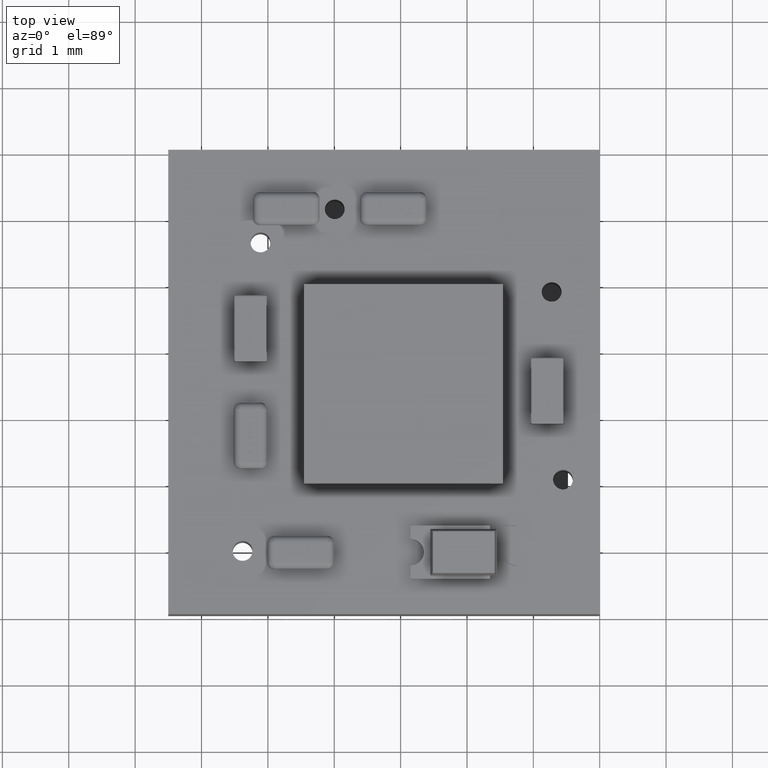
[diagram: clean part render]
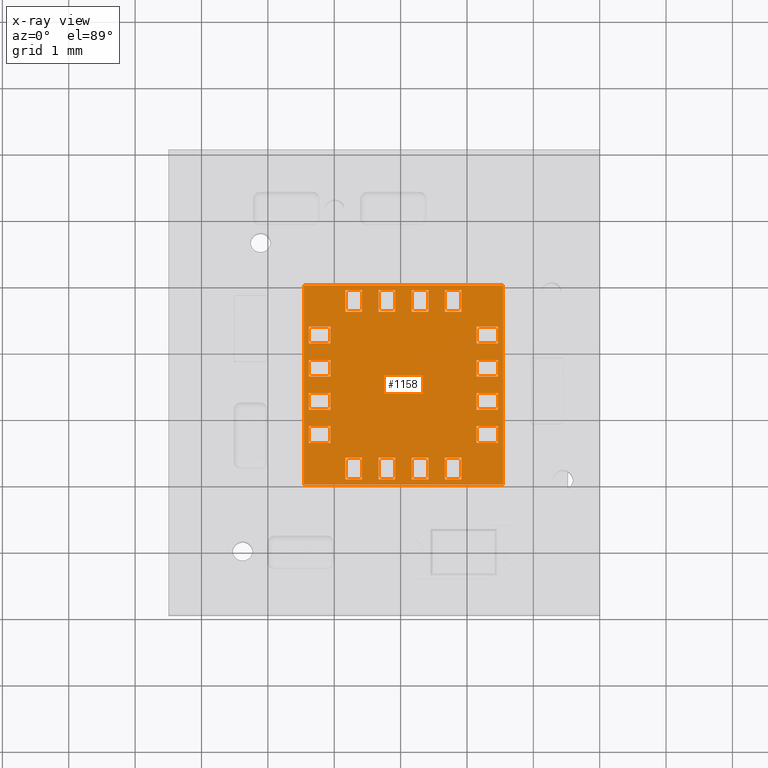
[diagram: x-ray — body ghosted, one internal face saturated and labeled with its STEP entity id]
A machine part, top view, then the same camera in x-ray: the body is ghosted and one INTERNAL B-rep face — a face not visible from any outside direction — is saturated and labeled: STEP entity #1158.
In plain terms, the highlighted planar face has unit normal (0, 0, -1).
Its self-contained STEP definition (entity closure, byte-faithful):
#1016 = EDGE_CURVE('',#1017,#1019,#1021,.T.);
#1017 = VERTEX_POINT('',#1018);
#1018 = CARTESIAN_POINT('',(1.5,0.E+000,1.5));
#1019 = VERTEX_POINT('',#1020);
#1020 = CARTESIAN_POINT('',(1.5,0.E+000,-1.5));
#1021 = LINE('',#1022,#1023);
#1022 = CARTESIAN_POINT('',(1.5,0.E+000,1.5));
#1023 = VECTOR('',#1024,1.);
#1024 = DIRECTION('',(0.E+000,0.E+000,-1.));
#1056 = EDGE_CURVE('',#1019,#1057,#1059,.T.);
#1057 = VERTEX_POINT('',#1058);
#1058 = CARTESIAN_POINT('',(-1.5,0.E+000,-1.5));
#1059 = LINE('',#1060,#1061);
#1060 = CARTESIAN_POINT('',(-1.5,0.E+000,-1.5));
#1061 = VECTOR('',#1062,1.);
#1062 = DIRECTION('',(-1.,-0.E+000,-0.E+000));
#1087 = EDGE_CURVE('',#1057,#1088,#1090,.T.);
#1088 = VERTEX_POINT('',#1089);
#1089 = CARTESIAN_POINT('',(-1.5,0.E+000,1.5));
#1090 = LINE('',#1091,#1092);
#1091 = CARTESIAN_POINT('',(-1.5,0.E+000,1.5));
#1092 = VECTOR('',#1093,1.);
#1093 = DIRECTION('',(-0.E+000,-0.E+000,1.));
#1118 = EDGE_CURVE('',#1088,#1017,#1119,.T.);
#1119 = LINE('',#1120,#1121);
#1120 = CARTESIAN_POINT('',(-1.5,0.E+000,1.5));
#1121 = VECTOR('',#1122,1.);
#1122 = DIRECTION('',(1.,0.E+000,0.E+000));
#1158 = ADVANCED_FACE('',(#1159,#1193,#1227,#1261,#1295,#1329,#1363,
    #1397,#1431,#1465,#1499,#1533,#1567,#1601,#1635,#1669,#1703),#1709,
  .T.);
#1159 = FACE_BOUND('',#1160,.T.);
#1160 = EDGE_LOOP('',(#1161,#1171,#1179,#1187));
#1161 = ORIENTED_EDGE('',*,*,#1162,.F.);
#1162 = EDGE_CURVE('',#1163,#1165,#1167,.T.);
#1163 = VERTEX_POINT('',#1164);
#1164 = CARTESIAN_POINT('',(-0.375,0.E+000,1.425));
#1165 = VERTEX_POINT('',#1166);
#1166 = CARTESIAN_POINT('',(-0.375,-0.E+000,1.1));
#1167 = LINE('',#1168,#1169);
#1168 = CARTESIAN_POINT('',(-0.375,0.E+000,1.425));
#1169 = VECTOR('',#1170,1.);
#1170 = DIRECTION('',(0.E+000,0.E+000,-1.));
#1171 = ORIENTED_EDGE('',*,*,#1172,.F.);
#1172 = EDGE_CURVE('',#1173,#1163,#1175,.T.);
#1173 = VERTEX_POINT('',#1174);
#1174 = CARTESIAN_POINT('',(-0.125,0.E+000,1.425));
#1175 = LINE('',#1176,#1177);
#1176 = CARTESIAN_POINT('',(-0.375,0.E+000,1.425));
#1177 = VECTOR('',#1178,1.);
#1178 = DIRECTION('',(-1.,-0.E+000,-0.E+000));
#1179 = ORIENTED_EDGE('',*,*,#1180,.F.);
#1180 = EDGE_CURVE('',#1181,#1173,#1183,.T.);
#1181 = VERTEX_POINT('',#1182);
#1182 = CARTESIAN_POINT('',(-0.125,0.E+000,1.1));
#1183 = LINE('',#1184,#1185);
#1184 = CARTESIAN_POINT('',(-0.125,0.E+000,1.425));
#1185 = VECTOR('',#1186,1.);
#1186 = DIRECTION('',(-0.E+000,-0.E+000,1.));
#1187 = ORIENTED_EDGE('',*,*,#1188,.F.);
#1188 = EDGE_CURVE('',#1165,#1181,#1189,.T.);
#1189 = LINE('',#1190,#1191);
#1190 = CARTESIAN_POINT('',(-0.375,0.E+000,1.1));
#1191 = VECTOR('',#1192,1.);
#1192 = DIRECTION('',(1.,0.E+000,0.E+000));
#1193 = FACE_BOUND('',#1194,.T.);
#1194 = EDGE_LOOP('',(#1195,#1205,#1213,#1221));
#1195 = ORIENTED_EDGE('',*,*,#1196,.F.);
#1196 = EDGE_CURVE('',#1197,#1199,#1201,.T.);
#1197 = VERTEX_POINT('',#1198);
#1198 = CARTESIAN_POINT('',(0.125,-0.E+000,1.425));
#1199 = VERTEX_POINT('',#1200);
#1200 = CARTESIAN_POINT('',(0.125,0.E+000,1.1));
#1201 = LINE('',#1202,#1203);
#1202 = CARTESIAN_POINT('',(0.125,-0.E+000,1.425));
#1203 = VECTOR('',#1204,1.);
#1204 = DIRECTION('',(0.E+000,0.E+000,-1.));
#1205 = ORIENTED_EDGE('',*,*,#1206,.F.);
#1206 = EDGE_CURVE('',#1207,#1197,#1209,.T.);
#1207 = VERTEX_POINT('',#1208);
#1208 = CARTESIAN_POINT('',(0.375,-0.E+000,1.425));
#1209 = LINE('',#1210,#1211);
#1210 = CARTESIAN_POINT('',(0.125,-0.E+000,1.425));
#1211 = VECTOR('',#1212,1.);
#1212 = DIRECTION('',(-1.,-0.E+000,-0.E+000));
#1213 = ORIENTED_EDGE('',*,*,#1214,.F.);
#1214 = EDGE_CURVE('',#1215,#1207,#1217,.T.);
#1215 = VERTEX_POINT('',#1216);
#1216 = CARTESIAN_POINT('',(0.375,-0.E+000,1.1));
#1217 = LINE('',#1218,#1219);
#1218 = CARTESIAN_POINT('',(0.375,-0.E+000,1.425));
#1219 = VECTOR('',#1220,1.);
#1220 = DIRECTION('',(-0.E+000,-0.E+000,1.));
#1221 = ORIENTED_EDGE('',*,*,#1222,.F.);
#1222 = EDGE_CURVE('',#1199,#1215,#1223,.T.);
#1223 = LINE('',#1224,#1225);
#1224 = CARTESIAN_POINT('',(0.125,-0.E+000,1.1));
#1225 = VECTOR('',#1226,1.);
#1226 = DIRECTION('',(1.,0.E+000,0.E+000));
#1227 = FACE_BOUND('',#1228,.T.);
#1228 = EDGE_LOOP('',(#1229,#1239,#1247,#1255));
#1229 = ORIENTED_EDGE('',*,*,#1230,.F.);
#1230 = EDGE_CURVE('',#1231,#1233,#1235,.T.);
#1231 = VERTEX_POINT('',#1232);
#1232 = CARTESIAN_POINT('',(0.625,-0.E+000,1.425));
#1233 = VERTEX_POINT('',#1234);
#1234 = CARTESIAN_POINT('',(0.625,0.E+000,1.1));
#1235 = LINE('',#1236,#1237);
#1236 = CARTESIAN_POINT('',(0.625,-0.E+000,1.425));
#1237 = VECTOR('',#1238,1.);
#1238 = DIRECTION('',(0.E+000,0.E+000,-1.));
#1239 = ORIENTED_EDGE('',*,*,#1240,.F.);
#1240 = EDGE_CURVE('',#1241,#1231,#1243,.T.);
#1241 = VERTEX_POINT('',#1242);
#1242 = CARTESIAN_POINT('',(0.875,-0.E+000,1.425));
#1243 = LINE('',#1244,#1245);
#1244 = CARTESIAN_POINT('',(0.625,-0.E+000,1.425));
#1245 = VECTOR('',#1246,1.);
#1246 = DIRECTION('',(-1.,-0.E+000,-0.E+000));
#1247 = ORIENTED_EDGE('',*,*,#1248,.F.);
#1248 = EDGE_CURVE('',#1249,#1241,#1251,.T.);
#1249 = VERTEX_POINT('',#1250);
#1250 = CARTESIAN_POINT('',(0.875,-0.E+000,1.1));
#1251 = LINE('',#1252,#1253);
#1252 = CARTESIAN_POINT('',(0.875,-0.E+000,1.425));
#1253 = VECTOR('',#1254,1.);
#1254 = DIRECTION('',(-0.E+000,-0.E+000,1.));
#1255 = ORIENTED_EDGE('',*,*,#1256,.F.);
#1256 = EDGE_CURVE('',#1233,#1249,#1257,.T.);
#1257 = LINE('',#1258,#1259);
#1258 = CARTESIAN_POINT('',(0.625,-0.E+000,1.1));
#1259 = VECTOR('',#1260,1.);
#1260 = DIRECTION('',(1.,0.E+000,0.E+000));
#1261 = FACE_BOUND('',#1262,.T.);
#1262 = EDGE_LOOP('',(#1263,#1273,#1281,#1289));
#1263 = ORIENTED_EDGE('',*,*,#1264,.F.);
#1264 = EDGE_CURVE('',#1265,#1267,#1269,.T.);
#1265 = VERTEX_POINT('',#1266);
#1266 = CARTESIAN_POINT('',(1.425,-0.E+000,0.875));
#1267 = VERTEX_POINT('',#1268);
#1268 = CARTESIAN_POINT('',(1.1,0.E+000,0.875));
#1269 = LINE('',#1270,#1271);
#1270 = CARTESIAN_POINT('',(1.425,-0.E+000,0.875));
#1271 = VECTOR('',#1272,1.);
#1272 = DIRECTION('',(-1.,0.E+000,0.E+000));
#1273 = ORIENTED_EDGE('',*,*,#1274,.F.);
#1274 = EDGE_CURVE('',#1275,#1265,#1277,.T.);
#1275 = VERTEX_POINT('',#1276);
#1276 = CARTESIAN_POINT('',(1.425,-0.E+000,0.625));
#1277 = LINE('',#1278,#1279);
#1278 = CARTESIAN_POINT('',(1.425,-0.E+000,0.875));
#1279 = VECTOR('',#1280,1.);
#1280 = DIRECTION('',(-0.E+000,-0.E+000,1.));
#1281 = ORIENTED_EDGE('',*,*,#1282,.F.);
#1282 = EDGE_CURVE('',#1283,#1275,#1285,.T.);
#1283 = VERTEX_POINT('',#1284);
#1284 = CARTESIAN_POINT('',(1.1,-0.E+000,0.625));
#1285 = LINE('',#1286,#1287);
#1286 = CARTESIAN_POINT('',(1.425,-0.E+000,0.625));
#1287 = VECTOR('',#1288,1.);
#1288 = DIRECTION('',(1.,-0.E+000,-0.E+000));
#1289 = ORIENTED_EDGE('',*,*,#1290,.F.);
#1290 = EDGE_CURVE('',#1267,#1283,#1291,.T.);
#1291 = LINE('',#1292,#1293);
#1292 = CARTESIAN_POINT('',(1.1,-0.E+000,0.875));
#1293 = VECTOR('',#1294,1.);
#1294 = DIRECTION('',(0.E+000,0.E+000,-1.));
#1295 = FACE_BOUND('',#1296,.T.);
#1296 = EDGE_LOOP('',(#1297,#1307,#1315,#1323));
#1297 = ORIENTED_EDGE('',*,*,#1298,.F.);
#1298 = EDGE_CURVE('',#1299,#1301,#1303,.T.);
#1299 = VERTEX_POINT('',#1300);
#1300 = CARTESIAN_POINT('',(1.425,-0.E+000,0.375));
#1301 = VERTEX_POINT('',#1302);
#1302 = CARTESIAN_POINT('',(1.1,0.E+000,0.375));
#1303 = LINE('',#1304,#1305);
#1304 = CARTESIAN_POINT('',(1.425,-0.E+000,0.375));
#1305 = VECTOR('',#1306,1.);
#1306 = DIRECTION('',(-1.,0.E+000,-1.668003342285E-016));
#1307 = ORIENTED_EDGE('',*,*,#1308,.F.);
#1308 = EDGE_CURVE('',#1309,#1299,#1311,.T.);
#1309 = VERTEX_POINT('',#1310);
#1310 = CARTESIAN_POINT('',(1.425,-0.E+000,0.125));
#1311 = LINE('',#1312,#1313);
#1312 = CARTESIAN_POINT('',(1.425,-0.E+000,0.375));
#1313 = VECTOR('',#1314,1.);
#1314 = DIRECTION('',(-0.E+000,-0.E+000,1.));
#1315 = ORIENTED_EDGE('',*,*,#1316,.F.);
#1316 = EDGE_CURVE('',#1317,#1309,#1319,.T.);
#1317 = VERTEX_POINT('',#1318);
#1318 = CARTESIAN_POINT('',(1.1,-0.E+000,0.125));
#1319 = LINE('',#1320,#1321);
#1320 = CARTESIAN_POINT('',(1.425,-0.E+000,0.125));
#1321 = VECTOR('',#1322,1.);
#1322 = DIRECTION('',(1.,-0.E+000,8.340016711427E-017));
#1323 = ORIENTED_EDGE('',*,*,#1324,.F.);
#1324 = EDGE_CURVE('',#1301,#1317,#1325,.T.);
#1325 = LINE('',#1326,#1327);
#1326 = CARTESIAN_POINT('',(1.1,-0.E+000,0.375));
#1327 = VECTOR('',#1328,1.);
#1328 = DIRECTION('',(0.E+000,0.E+000,-1.));
#1329 = FACE_BOUND('',#1330,.T.);
#1330 = EDGE_LOOP('',(#1331,#1341,#1349,#1357));
#1331 = ORIENTED_EDGE('',*,*,#1332,.F.);
#1332 = EDGE_CURVE('',#1333,#1335,#1337,.T.);
#1333 = VERTEX_POINT('',#1334);
#1334 = CARTESIAN_POINT('',(1.425,0.E+000,-0.125));
#1335 = VERTEX_POINT('',#1336);
#1336 = CARTESIAN_POINT('',(1.1,0.E+000,-0.125));
#1337 = LINE('',#1338,#1339);
#1338 = CARTESIAN_POINT('',(1.425,0.E+000,-0.125));
#1339 = VECTOR('',#1340,1.);
#1340 = DIRECTION('',(-1.,0.E+000,-8.340016711427E-017));
#1341 = ORIENTED_EDGE('',*,*,#1342,.F.);
#1342 = EDGE_CURVE('',#1343,#1333,#1345,.T.);
#1343 = VERTEX_POINT('',#1344);
#1344 = CARTESIAN_POINT('',(1.425,0.E+000,-0.375));
#1345 = LINE('',#1346,#1347);
#1346 = CARTESIAN_POINT('',(1.425,0.E+000,-0.125));
#1347 = VECTOR('',#1348,1.);
#1348 = DIRECTION('',(-0.E+000,-0.E+000,1.));
#1349 = ORIENTED_EDGE('',*,*,#1350,.F.);
#1350 = EDGE_CURVE('',#1351,#1343,#1353,.T.);
#1351 = VERTEX_POINT('',#1352);
#1352 = CARTESIAN_POINT('',(1.1,0.E+000,-0.375));
#1353 = LINE('',#1354,#1355);
#1354 = CARTESIAN_POINT('',(1.425,0.E+000,-0.375));
#1355 = VECTOR('',#1356,1.);
#1356 = DIRECTION('',(1.,-0.E+000,1.668003342285E-016));
#1357 = ORIENTED_EDGE('',*,*,#1358,.F.);
#1358 = EDGE_CURVE('',#1335,#1351,#1359,.T.);
#1359 = LINE('',#1360,#1361);
#1360 = CARTESIAN_POINT('',(1.1,0.E+000,-0.125));
#1361 = VECTOR('',#1362,1.);
#1362 = DIRECTION('',(0.E+000,0.E+000,-1.));
#1363 = FACE_BOUND('',#1364,.T.);
#1364 = EDGE_LOOP('',(#1365,#1375,#1383,#1391));
#1365 = ORIENTED_EDGE('',*,*,#1366,.F.);
#1366 = EDGE_CURVE('',#1367,#1369,#1371,.T.);
#1367 = VERTEX_POINT('',#1368);
#1368 = CARTESIAN_POINT('',(1.425,0.E+000,-0.625));
#1369 = VERTEX_POINT('',#1370);
#1370 = CARTESIAN_POINT('',(1.1,0.E+000,-0.625));
#1371 = LINE('',#1372,#1373);
#1372 = CARTESIAN_POINT('',(1.425,0.E+000,-0.625));
#1373 = VECTOR('',#1374,1.);
#1374 = DIRECTION('',(-1.,0.E+000,0.E+000));
#1375 = ORIENTED_EDGE('',*,*,#1376,.F.);
#1376 = EDGE_CURVE('',#1377,#1367,#1379,.T.);
#1377 = VERTEX_POINT('',#1378);
#1378 = CARTESIAN_POINT('',(1.425,0.E+000,-0.875));
#1379 = LINE('',#1380,#1381);
#1380 = CARTESIAN_POINT('',(1.425,0.E+000,-0.625));
#1381 = VECTOR('',#1382,1.);
#1382 = DIRECTION('',(-0.E+000,-0.E+000,1.));
#1383 = ORIENTED_EDGE('',*,*,#1384,.F.);
#1384 = EDGE_CURVE('',#1385,#1377,#1387,.T.);
#1385 = VERTEX_POINT('',#1386);
#1386 = CARTESIAN_POINT('',(1.1,0.E+000,-0.875));
#1387 = LINE('',#1388,#1389);
#1388 = CARTESIAN_POINT('',(1.425,0.E+000,-0.875));
#1389 = VECTOR('',#1390,1.);
#1390 = DIRECTION('',(1.,-0.E+000,-0.E+000));
#1391 = ORIENTED_EDGE('',*,*,#1392,.F.);
#1392 = EDGE_CURVE('',#1369,#1385,#1393,.T.);
#1393 = LINE('',#1394,#1395);
#1394 = CARTESIAN_POINT('',(1.1,0.E+000,-0.625));
#1395 = VECTOR('',#1396,1.);
#1396 = DIRECTION('',(0.E+000,0.E+000,-1.));
#1397 = FACE_BOUND('',#1398,.T.);
#1398 = EDGE_LOOP('',(#1399,#1409,#1417,#1425));
#1399 = ORIENTED_EDGE('',*,*,#1400,.F.);
#1400 = EDGE_CURVE('',#1401,#1403,#1405,.T.);
#1401 = VERTEX_POINT('',#1402);
#1402 = CARTESIAN_POINT('',(0.875,0.E+000,-1.425));
#1403 = VERTEX_POINT('',#1404);
#1404 = CARTESIAN_POINT('',(0.875,-0.E+000,-1.1));
#1405 = LINE('',#1406,#1407);
#1406 = CARTESIAN_POINT('',(0.875,0.E+000,-1.425));
#1407 = VECTOR('',#1408,1.);
#1408 = DIRECTION('',(-3.336006684571E-016,0.E+000,1.));
#1409 = ORIENTED_EDGE('',*,*,#1410,.F.);
#1410 = EDGE_CURVE('',#1411,#1401,#1413,.T.);
#1411 = VERTEX_POINT('',#1412);
#1412 = CARTESIAN_POINT('',(0.625,0.E+000,-1.425));
#1413 = LINE('',#1414,#1415);
#1414 = CARTESIAN_POINT('',(0.875,0.E+000,-1.425));
#1415 = VECTOR('',#1416,1.);
#1416 = DIRECTION('',(1.,-0.E+000,-0.E+000));
#1417 = ORIENTED_EDGE('',*,*,#1418,.F.);
#1418 = EDGE_CURVE('',#1419,#1411,#1421,.T.);
#1419 = VERTEX_POINT('',#1420);
#1420 = CARTESIAN_POINT('',(0.625,0.E+000,-1.1));
#1421 = LINE('',#1422,#1423);
#1422 = CARTESIAN_POINT('',(0.625,0.E+000,-1.425));
#1423 = VECTOR('',#1424,1.);
#1424 = DIRECTION('',(3.336006684571E-016,-0.E+000,-1.));
#1425 = ORIENTED_EDGE('',*,*,#1426,.F.);
#1426 = EDGE_CURVE('',#1403,#1419,#1427,.T.);
#1427 = LINE('',#1428,#1429);
#1428 = CARTESIAN_POINT('',(0.875,0.E+000,-1.1));
#1429 = VECTOR('',#1430,1.);
#1430 = DIRECTION('',(-1.,0.E+000,0.E+000));
#1431 = FACE_BOUND('',#1432,.T.);
#1432 = EDGE_LOOP('',(#1433,#1443,#1451,#1459));
#1433 = ORIENTED_EDGE('',*,*,#1434,.F.);
#1434 = EDGE_CURVE('',#1435,#1437,#1439,.T.);
#1435 = VERTEX_POINT('',#1436);
#1436 = CARTESIAN_POINT('',(0.375,0.E+000,-1.425));
#1437 = VERTEX_POINT('',#1438);
#1438 = CARTESIAN_POINT('',(0.375,-0.E+000,-1.1));
#1439 = LINE('',#1440,#1441);
#1440 = CARTESIAN_POINT('',(0.375,0.E+000,-1.425));
#1441 = VECTOR('',#1442,1.);
#1442 = DIRECTION('',(-1.668003342285E-016,0.E+000,1.));
#1443 = ORIENTED_EDGE('',*,*,#1444,.F.);
#1444 = EDGE_CURVE('',#1445,#1435,#1447,.T.);
#1445 = VERTEX_POINT('',#1446);
#1446 = CARTESIAN_POINT('',(0.125,0.E+000,-1.425));
#1447 = LINE('',#1448,#1449);
#1448 = CARTESIAN_POINT('',(0.375,0.E+000,-1.425));
#1449 = VECTOR('',#1450,1.);
#1450 = DIRECTION('',(1.,-0.E+000,-0.E+000));
#1451 = ORIENTED_EDGE('',*,*,#1452,.F.);
#1452 = EDGE_CURVE('',#1453,#1445,#1455,.T.);
#1453 = VERTEX_POINT('',#1454);
#1454 = CARTESIAN_POINT('',(0.125,0.E+000,-1.1));
#1455 = LINE('',#1456,#1457);
#1456 = CARTESIAN_POINT('',(0.125,0.E+000,-1.425));
#1457 = VECTOR('',#1458,1.);
#1458 = DIRECTION('',(8.340016711427E-017,-0.E+000,-1.));
#1459 = ORIENTED_EDGE('',*,*,#1460,.F.);
#1460 = EDGE_CURVE('',#1437,#1453,#1461,.T.);
#1461 = LINE('',#1462,#1463);
#1462 = CARTESIAN_POINT('',(0.375,0.E+000,-1.1));
#1463 = VECTOR('',#1464,1.);
#1464 = DIRECTION('',(-1.,0.E+000,0.E+000));
#1465 = FACE_BOUND('',#1466,.T.);
#1466 = EDGE_LOOP('',(#1467,#1477,#1485,#1493));
#1467 = ORIENTED_EDGE('',*,*,#1468,.F.);
#1468 = EDGE_CURVE('',#1469,#1471,#1473,.T.);
#1469 = VERTEX_POINT('',#1470);
#1470 = CARTESIAN_POINT('',(-0.125,0.E+000,-1.425));
#1471 = VERTEX_POINT('',#1472);
#1472 = CARTESIAN_POINT('',(-0.125,0.E+000,-1.1));
#1473 = LINE('',#1474,#1475);
#1474 = CARTESIAN_POINT('',(-0.125,0.E+000,-1.425));
#1475 = VECTOR('',#1476,1.);
#1476 = DIRECTION('',(-8.340016711427E-017,0.E+000,1.));
#1477 = ORIENTED_EDGE('',*,*,#1478,.F.);
#1478 = EDGE_CURVE('',#1479,#1469,#1481,.T.);
#1479 = VERTEX_POINT('',#1480);
#1480 = CARTESIAN_POINT('',(-0.375,0.E+000,-1.425));
#1481 = LINE('',#1482,#1483);
#1482 = CARTESIAN_POINT('',(-0.125,0.E+000,-1.425));
#1483 = VECTOR('',#1484,1.);
#1484 = DIRECTION('',(1.,-0.E+000,-0.E+000));
#1485 = ORIENTED_EDGE('',*,*,#1486,.F.);
#1486 = EDGE_CURVE('',#1487,#1479,#1489,.T.);
#1487 = VERTEX_POINT('',#1488);
#1488 = CARTESIAN_POINT('',(-0.375,0.E+000,-1.1));
#1489 = LINE('',#1490,#1491);
#1490 = CARTESIAN_POINT('',(-0.375,0.E+000,-1.425));
#1491 = VECTOR('',#1492,1.);
#1492 = DIRECTION('',(1.668003342285E-016,-0.E+000,-1.));
#1493 = ORIENTED_EDGE('',*,*,#1494,.F.);
#1494 = EDGE_CURVE('',#1471,#1487,#1495,.T.);
#1495 = LINE('',#1496,#1497);
#1496 = CARTESIAN_POINT('',(-0.125,0.E+000,-1.1));
#1497 = VECTOR('',#1498,1.);
#1498 = DIRECTION('',(-1.,0.E+000,0.E+000));
#1499 = FACE_BOUND('',#1500,.T.);
#1500 = EDGE_LOOP('',(#1501,#1511,#1519,#1527));
#1501 = ORIENTED_EDGE('',*,*,#1502,.F.);
#1502 = EDGE_CURVE('',#1503,#1505,#1507,.T.);
#1503 = VERTEX_POINT('',#1504);
#1504 = CARTESIAN_POINT('',(-0.625,0.E+000,-1.425));
#1505 = VERTEX_POINT('',#1506);
#1506 = CARTESIAN_POINT('',(-0.625,0.E+000,-1.1));
#1507 = LINE('',#1508,#1509);
#1508 = CARTESIAN_POINT('',(-0.625,0.E+000,-1.425));
#1509 = VECTOR('',#1510,1.);
#1510 = DIRECTION('',(-3.336006684571E-016,0.E+000,1.));
#1511 = ORIENTED_EDGE('',*,*,#1512,.F.);
#1512 = EDGE_CURVE('',#1513,#1503,#1515,.T.);
#1513 = VERTEX_POINT('',#1514);
#1514 = CARTESIAN_POINT('',(-0.875,0.E+000,-1.425));
#1515 = LINE('',#1516,#1517);
#1516 = CARTESIAN_POINT('',(-0.625,0.E+000,-1.425));
#1517 = VECTOR('',#1518,1.);
#1518 = DIRECTION('',(1.,-0.E+000,-0.E+000));
#1519 = ORIENTED_EDGE('',*,*,#1520,.F.);
#1520 = EDGE_CURVE('',#1521,#1513,#1523,.T.);
#1521 = VERTEX_POINT('',#1522);
#1522 = CARTESIAN_POINT('',(-0.875,0.E+000,-1.1));
#1523 = LINE('',#1524,#1525);
#1524 = CARTESIAN_POINT('',(-0.875,0.E+000,-1.425));
#1525 = VECTOR('',#1526,1.);
#1526 = DIRECTION('',(3.336006684571E-016,-0.E+000,-1.));
#1527 = ORIENTED_EDGE('',*,*,#1528,.F.);
#1528 = EDGE_CURVE('',#1505,#1521,#1529,.T.);
#1529 = LINE('',#1530,#1531);
#1530 = CARTESIAN_POINT('',(-0.625,0.E+000,-1.1));
#1531 = VECTOR('',#1532,1.);
#1532 = DIRECTION('',(-1.,0.E+000,0.E+000));
#1533 = FACE_BOUND('',#1534,.T.);
#1534 = EDGE_LOOP('',(#1535,#1545,#1553,#1561));
#1535 = ORIENTED_EDGE('',*,*,#1536,.F.);
#1536 = EDGE_CURVE('',#1537,#1539,#1541,.T.);
#1537 = VERTEX_POINT('',#1538);
#1538 = CARTESIAN_POINT('',(-1.425,0.E+000,-0.875));
#1539 = VERTEX_POINT('',#1540);
#1540 = CARTESIAN_POINT('',(-1.1,-0.E+000,-0.875));
#1541 = LINE('',#1542,#1543);
#1542 = CARTESIAN_POINT('',(-1.425,0.E+000,-0.875));
#1543 = VECTOR('',#1544,1.);
#1544 = DIRECTION('',(1.,0.E+000,0.E+000));
#1545 = ORIENTED_EDGE('',*,*,#1546,.F.);
#1546 = EDGE_CURVE('',#1547,#1537,#1549,.T.);
#1547 = VERTEX_POINT('',#1548);
#1548 = CARTESIAN_POINT('',(-1.425,0.E+000,-0.625));
#1549 = LINE('',#1550,#1551);
#1550 = CARTESIAN_POINT('',(-1.425,0.E+000,-0.875));
#1551 = VECTOR('',#1552,1.);
#1552 = DIRECTION('',(-0.E+000,-0.E+000,-1.));
#1553 = ORIENTED_EDGE('',*,*,#1554,.F.);
#1554 = EDGE_CURVE('',#1555,#1547,#1557,.T.);
#1555 = VERTEX_POINT('',#1556);
#1556 = CARTESIAN_POINT('',(-1.1,0.E+000,-0.625));
#1557 = LINE('',#1558,#1559);
#1558 = CARTESIAN_POINT('',(-1.425,0.E+000,-0.625));
#1559 = VECTOR('',#1560,1.);
#1560 = DIRECTION('',(-1.,-0.E+000,-0.E+000));
#1561 = ORIENTED_EDGE('',*,*,#1562,.F.);
#1562 = EDGE_CURVE('',#1539,#1555,#1563,.T.);
#1563 = LINE('',#1564,#1565);
#1564 = CARTESIAN_POINT('',(-1.1,0.E+000,-0.875));
#1565 = VECTOR('',#1566,1.);
#1566 = DIRECTION('',(0.E+000,0.E+000,1.));
#1567 = FACE_BOUND('',#1568,.T.);
#1568 = EDGE_LOOP('',(#1569,#1579,#1587,#1595));
#1569 = ORIENTED_EDGE('',*,*,#1570,.F.);
#1570 = EDGE_CURVE('',#1571,#1573,#1575,.T.);
#1571 = VERTEX_POINT('',#1572);
#1572 = CARTESIAN_POINT('',(-1.425,0.E+000,-0.375));
#1573 = VERTEX_POINT('',#1574);
#1574 = CARTESIAN_POINT('',(-1.1,-0.E+000,-0.375));
#1575 = LINE('',#1576,#1577);
#1576 = CARTESIAN_POINT('',(-1.425,0.E+000,-0.375));
#1577 = VECTOR('',#1578,1.);
#1578 = DIRECTION('',(1.,0.E+000,1.668003342285E-016));
#1579 = ORIENTED_EDGE('',*,*,#1580,.F.);
#1580 = EDGE_CURVE('',#1581,#1571,#1583,.T.);
#1581 = VERTEX_POINT('',#1582);
#1582 = CARTESIAN_POINT('',(-1.425,0.E+000,-0.125));
#1583 = LINE('',#1584,#1585);
#1584 = CARTESIAN_POINT('',(-1.425,0.E+000,-0.375));
#1585 = VECTOR('',#1586,1.);
#1586 = DIRECTION('',(-0.E+000,-0.E+000,-1.));
#1587 = ORIENTED_EDGE('',*,*,#1588,.F.);
#1588 = EDGE_CURVE('',#1589,#1581,#1591,.T.);
#1589 = VERTEX_POINT('',#1590);
#1590 = CARTESIAN_POINT('',(-1.1,0.E+000,-0.125));
#1591 = LINE('',#1592,#1593);
#1592 = CARTESIAN_POINT('',(-1.425,0.E+000,-0.125));
#1593 = VECTOR('',#1594,1.);
#1594 = DIRECTION('',(-1.,-0.E+000,-2.502005013428E-016));
#1595 = ORIENTED_EDGE('',*,*,#1596,.F.);
#1596 = EDGE_CURVE('',#1573,#1589,#1597,.T.);
#1597 = LINE('',#1598,#1599);
#1598 = CARTESIAN_POINT('',(-1.1,0.E+000,-0.375));
#1599 = VECTOR('',#1600,1.);
#1600 = DIRECTION('',(0.E+000,0.E+000,1.));
#1601 = FACE_BOUND('',#1602,.T.);
#1602 = EDGE_LOOP('',(#1603,#1613,#1621,#1629));
#1603 = ORIENTED_EDGE('',*,*,#1604,.F.);
#1604 = EDGE_CURVE('',#1605,#1607,#1609,.T.);
#1605 = VERTEX_POINT('',#1606);
#1606 = CARTESIAN_POINT('',(-1.425,0.E+000,0.125));
#1607 = VERTEX_POINT('',#1608);
#1608 = CARTESIAN_POINT('',(-1.1,0.E+000,0.125));
#1609 = LINE('',#1610,#1611);
#1610 = CARTESIAN_POINT('',(-1.425,0.E+000,0.125));
#1611 = VECTOR('',#1612,1.);
#1612 = DIRECTION('',(1.,0.E+000,2.502005013428E-016));
#1613 = ORIENTED_EDGE('',*,*,#1614,.F.);
#1614 = EDGE_CURVE('',#1615,#1605,#1617,.T.);
#1615 = VERTEX_POINT('',#1616);
#1616 = CARTESIAN_POINT('',(-1.425,0.E+000,0.375));
#1617 = LINE('',#1618,#1619);
#1618 = CARTESIAN_POINT('',(-1.425,0.E+000,0.125));
#1619 = VECTOR('',#1620,1.);
#1620 = DIRECTION('',(-0.E+000,-0.E+000,-1.));
#1621 = ORIENTED_EDGE('',*,*,#1622,.F.);
#1622 = EDGE_CURVE('',#1623,#1615,#1625,.T.);
#1623 = VERTEX_POINT('',#1624);
#1624 = CARTESIAN_POINT('',(-1.1,0.E+000,0.375));
#1625 = LINE('',#1626,#1627);
#1626 = CARTESIAN_POINT('',(-1.425,0.E+000,0.375));
#1627 = VECTOR('',#1628,1.);
#1628 = DIRECTION('',(-1.,-0.E+000,-1.668003342285E-016));
#1629 = ORIENTED_EDGE('',*,*,#1630,.F.);
#1630 = EDGE_CURVE('',#1607,#1623,#1631,.T.);
#1631 = LINE('',#1632,#1633);
#1632 = CARTESIAN_POINT('',(-1.1,0.E+000,0.125));
#1633 = VECTOR('',#1634,1.);
#1634 = DIRECTION('',(0.E+000,0.E+000,1.));
#1635 = FACE_BOUND('',#1636,.T.);
#1636 = EDGE_LOOP('',(#1637,#1647,#1655,#1663));
#1637 = ORIENTED_EDGE('',*,*,#1638,.F.);
#1638 = EDGE_CURVE('',#1639,#1641,#1643,.T.);
#1639 = VERTEX_POINT('',#1640);
#1640 = CARTESIAN_POINT('',(-1.425,0.E+000,0.625));
#1641 = VERTEX_POINT('',#1642);
#1642 = CARTESIAN_POINT('',(-1.1,0.E+000,0.625));
#1643 = LINE('',#1644,#1645);
#1644 = CARTESIAN_POINT('',(-1.425,0.E+000,0.625));
#1645 = VECTOR('',#1646,1.);
#1646 = DIRECTION('',(1.,0.E+000,0.E+000));
#1647 = ORIENTED_EDGE('',*,*,#1648,.F.);
#1648 = EDGE_CURVE('',#1649,#1639,#1651,.T.);
#1649 = VERTEX_POINT('',#1650);
#1650 = CARTESIAN_POINT('',(-1.425,0.E+000,0.875));
#1651 = LINE('',#1652,#1653);
#1652 = CARTESIAN_POINT('',(-1.425,0.E+000,0.625));
#1653 = VECTOR('',#1654,1.);
#1654 = DIRECTION('',(-0.E+000,-0.E+000,-1.));
#1655 = ORIENTED_EDGE('',*,*,#1656,.F.);
#1656 = EDGE_CURVE('',#1657,#1649,#1659,.T.);
#1657 = VERTEX_POINT('',#1658);
#1658 = CARTESIAN_POINT('',(-1.1,0.E+000,0.875));
#1659 = LINE('',#1660,#1661);
#1660 = CARTESIAN_POINT('',(-1.425,0.E+000,0.875));
#1661 = VECTOR('',#1662,1.);
#1662 = DIRECTION('',(-1.,-0.E+000,-0.E+000));
#1663 = ORIENTED_EDGE('',*,*,#1664,.F.);
#1664 = EDGE_CURVE('',#1641,#1657,#1665,.T.);
#1665 = LINE('',#1666,#1667);
#1666 = CARTESIAN_POINT('',(-1.1,0.E+000,0.625));
#1667 = VECTOR('',#1668,1.);
#1668 = DIRECTION('',(0.E+000,0.E+000,1.));
#1669 = FACE_BOUND('',#1670,.T.);
#1670 = EDGE_LOOP('',(#1671,#1681,#1689,#1697));
#1671 = ORIENTED_EDGE('',*,*,#1672,.F.);
#1672 = EDGE_CURVE('',#1673,#1675,#1677,.T.);
#1673 = VERTEX_POINT('',#1674);
#1674 = CARTESIAN_POINT('',(-0.875,0.E+000,1.425));
#1675 = VERTEX_POINT('',#1676);
#1676 = CARTESIAN_POINT('',(-0.875,-0.E+000,1.1));
#1677 = LINE('',#1678,#1679);
#1678 = CARTESIAN_POINT('',(-0.875,0.E+000,1.425));
#1679 = VECTOR('',#1680,1.);
#1680 = DIRECTION('',(0.E+000,0.E+000,-1.));
#1681 = ORIENTED_EDGE('',*,*,#1682,.F.);
#1682 = EDGE_CURVE('',#1683,#1673,#1685,.T.);
#1683 = VERTEX_POINT('',#1684);
#1684 = CARTESIAN_POINT('',(-0.625,0.E+000,1.425));
#1685 = LINE('',#1686,#1687);
#1686 = CARTESIAN_POINT('',(-0.875,0.E+000,1.425));
#1687 = VECTOR('',#1688,1.);
#1688 = DIRECTION('',(-1.,-0.E+000,-0.E+000));
#1689 = ORIENTED_EDGE('',*,*,#1690,.F.);
#1690 = EDGE_CURVE('',#1691,#1683,#1693,.T.);
#1691 = VERTEX_POINT('',#1692);
#1692 = CARTESIAN_POINT('',(-0.625,0.E+000,1.1));
#1693 = LINE('',#1694,#1695);
#1694 = CARTESIAN_POINT('',(-0.625,0.E+000,1.425));
#1695 = VECTOR('',#1696,1.);
#1696 = DIRECTION('',(-0.E+000,-0.E+000,1.));
#1697 = ORIENTED_EDGE('',*,*,#1698,.F.);
#1698 = EDGE_CURVE('',#1675,#1691,#1699,.T.);
#1699 = LINE('',#1700,#1701);
#1700 = CARTESIAN_POINT('',(-0.875,0.E+000,1.1));
#1701 = VECTOR('',#1702,1.);
#1702 = DIRECTION('',(1.,0.E+000,0.E+000));
#1703 = FACE_BOUND('',#1704,.T.);
#1704 = EDGE_LOOP('',(#1705,#1706,#1707,#1708));
#1705 = ORIENTED_EDGE('',*,*,#1016,.F.);
#1706 = ORIENTED_EDGE('',*,*,#1118,.F.);
#1707 = ORIENTED_EDGE('',*,*,#1087,.F.);
#1708 = ORIENTED_EDGE('',*,*,#1056,.F.);
#1709 = PLANE('',#1710);
#1710 = AXIS2_PLACEMENT_3D('',#1711,#1712,#1713);
#1711 = CARTESIAN_POINT('',(0.E+000,0.E+000,0.E+000));
#1712 = DIRECTION('',(0.E+000,-1.,0.E+000));
#1713 = DIRECTION('',(0.E+000,-0.E+000,-1.));